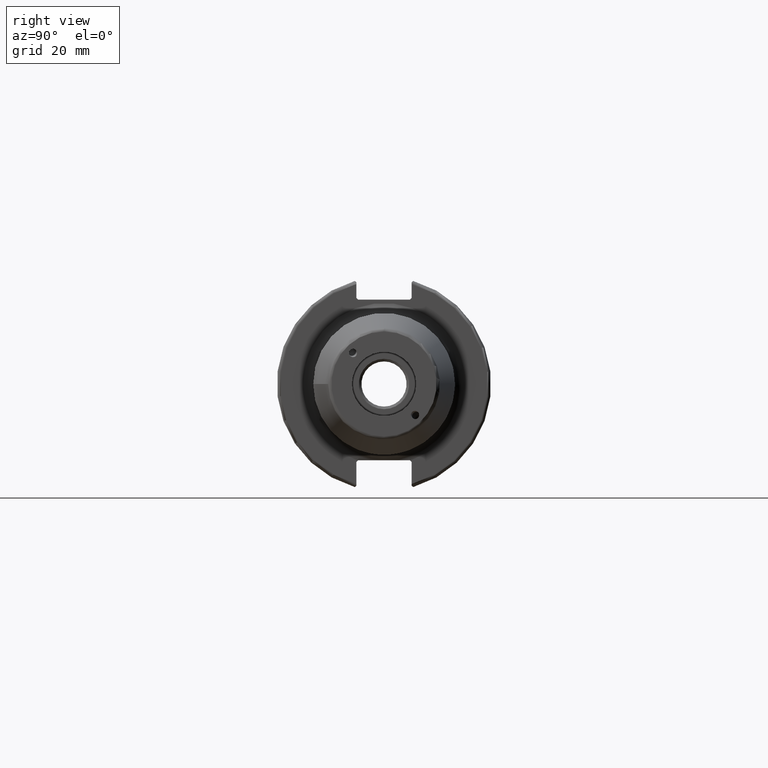
[diagram: clean part render]
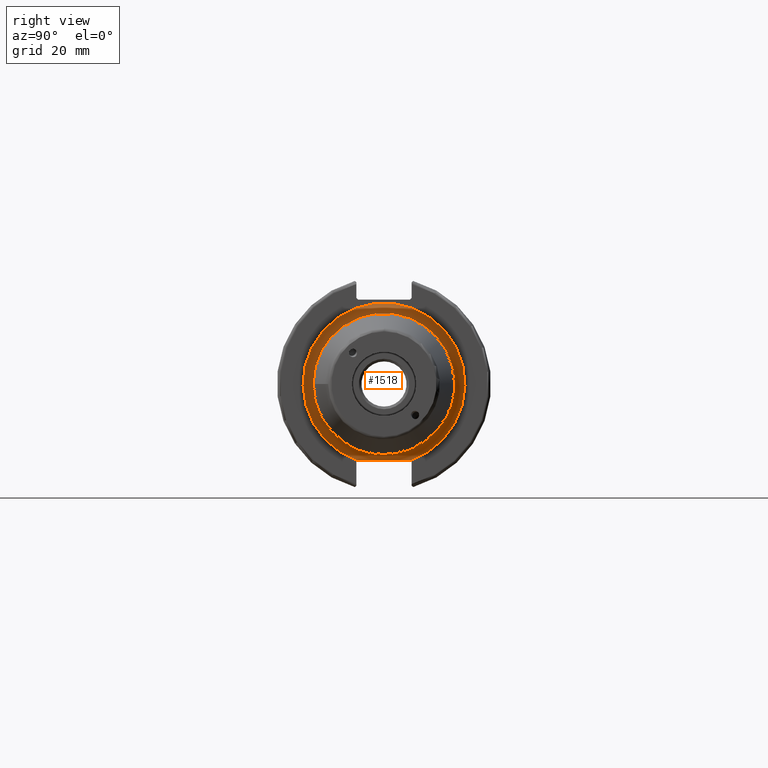
[diagram: same view with one face highlighted and labeled with its STEP entity id]
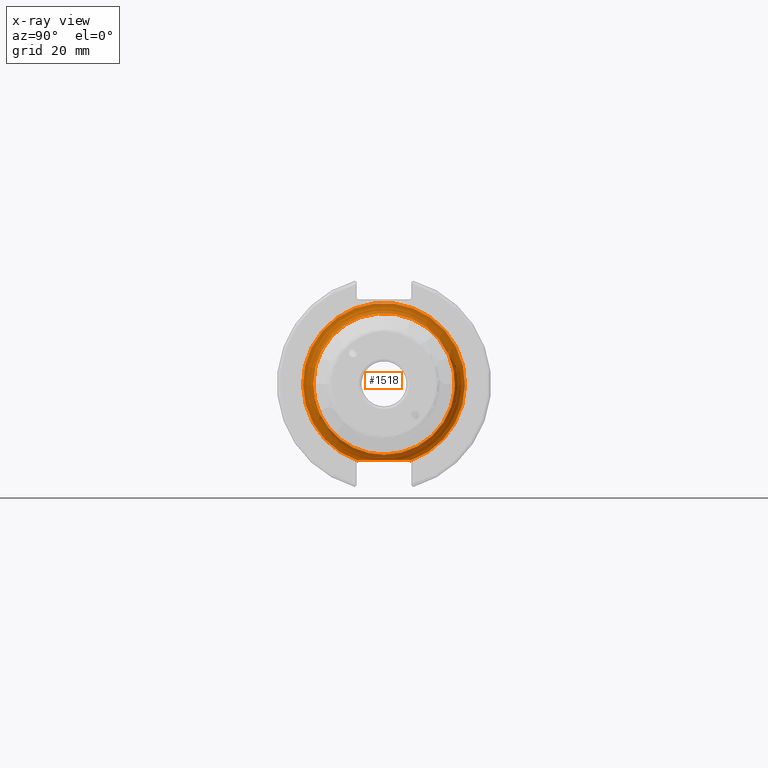
[diagram: x-ray of the same camera — body ghosted, the highlighted face saturated]
A machine part, right view. The second image highlights one B-rep face of the part: STEP entity #1518.
The next image is the same camera in x-ray: the body ghosted, the highlighted face saturated — about 2% of this face is hidden behind the body in this view.
In plain terms, the highlighted toroidal blend (fillet) surface has major radius 24 mm and minor (blend) radius 3 mm.
Its self-contained STEP definition (entity closure, byte-faithful):
#31=B_SPLINE_CURVE_WITH_KNOTS('',3,(#2300,#2301,#2302,#2303,#2304,#2305,
#2306,#2307),.UNSPECIFIED.,.F.,.F.,(4,2,2,4),(3.0216236412766,3.28363628936794,
3.54564893745927,3.74225815963158),.UNSPECIFIED.);
#32=B_SPLINE_CURVE_WITH_KNOTS('',3,(#2309,#2310,#2311,#2312),
 .UNSPECIFIED.,.F.,.F.,(4,4),(1.40009398294628,1.41404503547573),
 .UNSPECIFIED.);
#33=B_SPLINE_CURVE_WITH_KNOTS('',3,(#2316,#2317,#2318,#2319),
 .UNSPECIFIED.,.F.,.F.,(4,4),(0.466891581460793,0.480842633994298),
 .UNSPECIFIED.);
#34=B_SPLINE_CURVE_WITH_KNOTS('',3,(#2320,#2321,#2322,#2323,#2324,#2325,
#2326,#2327),.UNSPECIFIED.,.F.,.F.,(4,2,2,4),(2.30098912292435,2.49759834509393,
2.75961099318527,3.0216236412766),.UNSPECIFIED.);
#122=TOROIDAL_SURFACE('',#1639,24.,3.);
#185=FACE_OUTER_BOUND('',#276,.T.);
#276=EDGE_LOOP('',(#1051,#1052,#1053,#1054,#1055,#1056,#1057,#1058,#1059));
#563=CIRCLE('',#1640,21.);
#564=CIRCLE('',#1641,3.);
#565=CIRCLE('',#1642,24.);
#566=CIRCLE('',#1643,21.);
#639=VERTEX_POINT('',#2294);
#640=VERTEX_POINT('',#2295);
#641=VERTEX_POINT('',#2297);
#642=VERTEX_POINT('',#2299);
#643=VERTEX_POINT('',#2308);
#644=VERTEX_POINT('',#2313);
#645=VERTEX_POINT('',#2315);
#801=EDGE_CURVE('',#639,#640,#563,.T.);
#802=EDGE_CURVE('',#640,#641,#564,.T.);
#803=EDGE_CURVE('',#642,#641,#31,.F.);
#804=EDGE_CURVE('',#643,#642,#32,.F.);
#805=EDGE_CURVE('',#643,#644,#565,.T.);
#806=EDGE_CURVE('',#645,#644,#33,.F.);
#807=EDGE_CURVE('',#641,#645,#34,.F.);
#808=EDGE_CURVE('',#640,#639,#566,.T.);
#1051=ORIENTED_EDGE('',*,*,#801,.T.);
#1052=ORIENTED_EDGE('',*,*,#802,.T.);
#1053=ORIENTED_EDGE('',*,*,#803,.F.);
#1054=ORIENTED_EDGE('',*,*,#804,.F.);
#1055=ORIENTED_EDGE('',*,*,#805,.T.);
#1056=ORIENTED_EDGE('',*,*,#806,.F.);
#1057=ORIENTED_EDGE('',*,*,#807,.F.);
#1058=ORIENTED_EDGE('',*,*,#802,.F.);
#1059=ORIENTED_EDGE('',*,*,#808,.T.);
#1518=ADVANCED_FACE('',(#185),#122,.F.);
#1639=AXIS2_PLACEMENT_3D('',#2293,#1844,#1845);
#1640=AXIS2_PLACEMENT_3D('',#2296,#1846,#1847);
#1641=AXIS2_PLACEMENT_3D('',#2298,#1848,#1849);
#1642=AXIS2_PLACEMENT_3D('',#2314,#1850,#1851);
#1643=AXIS2_PLACEMENT_3D('',#2328,#1852,#1853);
#1844=DIRECTION('center_axis',(-1.,0.,0.));
#1845=DIRECTION('ref_axis',(0.,0.,1.));
#1846=DIRECTION('center_axis',(-1.,0.,0.));
#1847=DIRECTION('ref_axis',(0.,-1.,-1.22464679914735E-16));
#1848=DIRECTION('center_axis',(0.,-1.,1.22464679914735E-16));
#1849=DIRECTION('ref_axis',(0.,-1.22464679914735E-16,-1.));
#1850=DIRECTION('center_axis',(1.,0.,0.));
#1851=DIRECTION('ref_axis',(0.,-1.,-1.22464679914735E-16));
#1852=DIRECTION('center_axis',(-1.,0.,0.));
#1853=DIRECTION('ref_axis',(0.,-1.,-1.22464679914735E-16));
#2293=CARTESIAN_POINT('Origin',(22.05,0.,0.));
#2294=CARTESIAN_POINT('',(22.05,-21.,-2.57175827820944E-15));
#2295=CARTESIAN_POINT('',(22.05,-2.57175827820944E-15,-21.));
#2296=CARTESIAN_POINT('Origin',(22.05,0.,0.));
#2297=CARTESIAN_POINT('',(19.3967001677157,-1.38385088303651E-15,-22.6));
#2298=CARTESIAN_POINT('Origin',(22.05,-2.93915231795365E-15,-24.));
#2299=CARTESIAN_POINT('',(19.0527107387712,7.68999999999903,-22.5999999999997));
#2300=CARTESIAN_POINT('Ctrl Pts',(19.3967001677157,0.,-22.6));
#2301=CARTESIAN_POINT('Ctrl Pts',(19.3967001677157,0.873375493637784,-22.6));
#2302=CARTESIAN_POINT('Ctrl Pts',(19.36568730967,1.83307700034502,-22.6));
#2303=CARTESIAN_POINT('Ctrl Pts',(19.260184656287,3.75074838316052,-22.6));
#2304=CARTESIAN_POINT('Ctrl Pts',(19.1897248959444,4.70893785217619,-22.6));
#2305=CARTESIAN_POINT('Ctrl Pts',(19.0991248022468,6.23499037040782,-22.6));
#2306=CARTESIAN_POINT('Ctrl Pts',(19.0621726707475,6.99950800192411,-22.6));
#2307=CARTESIAN_POINT('Ctrl Pts',(19.0527107387712,7.68999999999903,-22.6));
#2308=CARTESIAN_POINT('',(19.05,7.79042472350311,-22.7004247235031));
#2309=CARTESIAN_POINT('Ctrl Pts',(19.0527107387708,7.69000000000736,-22.6000000000074));
#2310=CARTESIAN_POINT('Ctrl Pts',(19.0508750457563,7.72400994662633,-22.6340099466263));
#2311=CARTESIAN_POINT('Ctrl Pts',(19.05,7.75754177734223,-22.6675417773422));
#2312=CARTESIAN_POINT('Ctrl Pts',(19.05,7.79042472350312,-22.7004247235031));
#2313=CARTESIAN_POINT('',(19.05,-7.79042472350311,-22.7004247235031));
#2314=CARTESIAN_POINT('Origin',(19.05,0.,0.));
#2315=CARTESIAN_POINT('',(19.0527107387728,-7.68999999997033,-22.5999999999852));
#2316=CARTESIAN_POINT('Ctrl Pts',(19.05,-7.79042472350312,-22.7004247235031));
#2317=CARTESIAN_POINT('Ctrl Pts',(19.05,-7.75754177733268,-22.6675417773327));
#2318=CARTESIAN_POINT('Ctrl Pts',(19.0508750457568,-7.72400994660686,-22.6340099466069));
#2319=CARTESIAN_POINT('Ctrl Pts',(19.0527107387724,-7.68999999997773,-22.5999999999777));
#2320=CARTESIAN_POINT('Ctrl Pts',(19.0527107387716,-7.68999999997031,-22.6));
#2321=CARTESIAN_POINT('Ctrl Pts',(19.0621726707484,-6.99950800190292,-22.6));
#2322=CARTESIAN_POINT('Ctrl Pts',(19.0991248022473,-6.23499037039875,-22.6));
#2323=CARTESIAN_POINT('Ctrl Pts',(19.1897248959444,-4.70893785217619,-22.6));
#2324=CARTESIAN_POINT('Ctrl Pts',(19.260184656287,-3.75074838316052,-22.6));
#2325=CARTESIAN_POINT('Ctrl Pts',(19.36568730967,-1.83307700034502,-22.6));
#2326=CARTESIAN_POINT('Ctrl Pts',(19.3967001677157,-0.873375493637784,-22.6));
#2327=CARTESIAN_POINT('Ctrl Pts',(19.3967001677157,0.,-22.6));
#2328=CARTESIAN_POINT('Origin',(22.05,0.,0.));